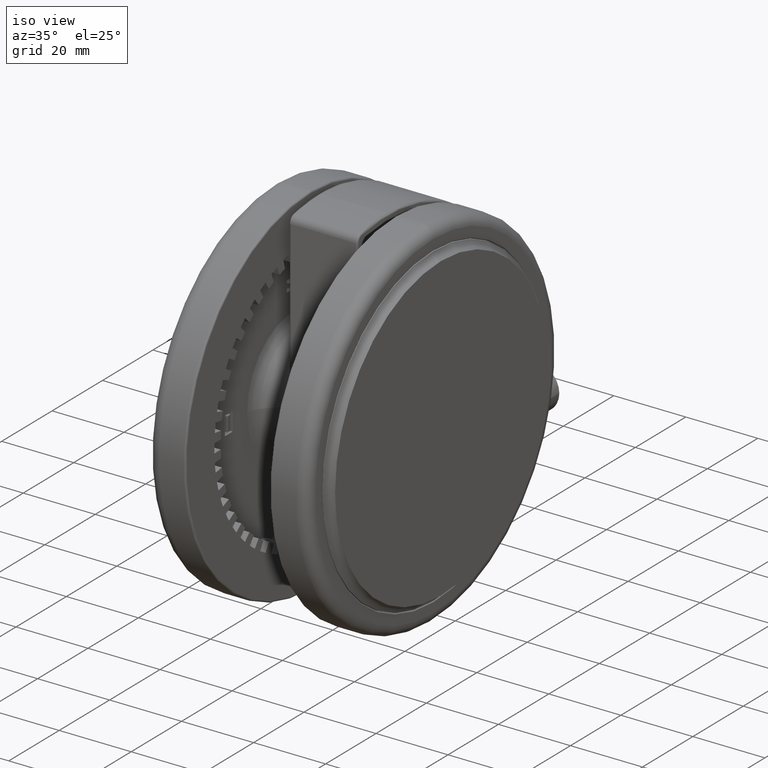
[diagram: clean part render]
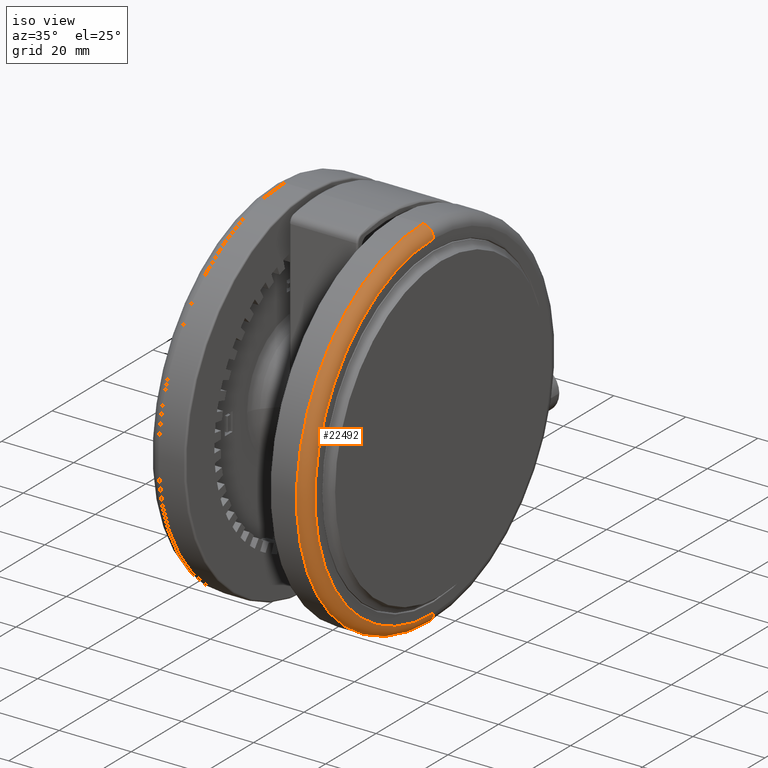
[diagram: same view with one face highlighted and labeled with its STEP entity id]
A machine part, iso view. The second image highlights one B-rep face of the part: STEP entity #22492.
In plain terms, the highlighted toroidal blend (fillet) surface has major radius 47 mm and minor (blend) radius 3 mm.
Its self-contained STEP definition (entity closure, byte-faithful):
#633 = CIRCLE ( 'NONE', #12936, 3.000000000000000900 ) ;
#888 = DIRECTION ( 'NONE',  ( 0.0000000000000000000, 0.0000000000000000000, -1.000000000000000000 ) ) ;
#1033 = CIRCLE ( 'NONE', #8955, 50.00000000000000000 ) ;
#1301 = VERTEX_POINT ( 'NONE', #2856 ) ;
#2656 = ORIENTED_EDGE ( 'NONE', *, *, #3468, .F. ) ;
#2794 = VERTEX_POINT ( 'NONE', #25921 ) ;
#2856 = CARTESIAN_POINT ( 'NONE',  ( 47.00000000000001400, 4.204813499887857100E-015, -2.099999999999990800 ) ) ;
#3468 = EDGE_CURVE ( 'NONE', #6915, #1301, #22864, .T. ) ;
#3663 = CARTESIAN_POINT ( 'NONE',  ( 1.387778780781445700E-014, -1.734723475976807100E-015, -5.099999999999880600 ) ) ;
#3999 = DIRECTION ( 'NONE',  ( -0.0000000000000000000, -1.000000000000000000, -0.0000000000000000000 ) ) ;
#5809 = TOROIDAL_SURFACE ( 'NONE', #23899, 47.00000000000000000, 3.000000000000000000 ) ;
#6161 = DIRECTION ( 'NONE',  ( 0.0000000000000000000, 0.0000000000000000000, -1.000000000000000000 ) ) ;
#6915 = VERTEX_POINT ( 'NONE', #27704 ) ;
#8276 = EDGE_LOOP ( 'NONE', ( #8304, #2656, #11390, #31594 ) ) ;
#8304 = ORIENTED_EDGE ( 'NONE', *, *, #19113, .F. ) ;
#8955 = AXIS2_PLACEMENT_3D ( 'NONE', #15811, #888, #18371 ) ;
#9687 = DIRECTION ( 'NONE',  ( -1.224646799147353200E-016, 1.000000000000000000, 0.0000000000000000000 ) ) ;
#11390 = ORIENTED_EDGE ( 'NONE', *, *, #13046, .T. ) ;
#11719 = AXIS2_PLACEMENT_3D ( 'NONE', #29473, #14459, #31947 ) ;
#12936 = AXIS2_PLACEMENT_3D ( 'NONE', #18967, #3999, #21506 ) ;
#13046 = EDGE_CURVE ( 'NONE', #6915, #2794, #633, .T. ) ;
#14459 = DIRECTION ( 'NONE',  ( -0.0000000000000000000, -0.0000000000000000000, 1.000000000000000000 ) ) ;
#15811 = CARTESIAN_POINT ( 'NONE',  ( 1.387778780781445700E-014, -1.734723475976807100E-015, -5.099999999999880600 ) ) ;
#16214 = VERTEX_POINT ( 'NONE', #31737 ) ;
#17506 = AXIS2_PLACEMENT_3D ( 'NONE', #24689, #9687, #27205 ) ;
#18371 = DIRECTION ( 'NONE',  ( -1.000000000000000000, 0.0000000000000000000, 0.0000000000000000000 ) ) ;
#18967 = CARTESIAN_POINT ( 'NONE',  ( -46.99999999999998600, -1.734723475976807100E-015, -5.099999999999880600 ) ) ;
#19113 = EDGE_CURVE ( 'NONE', #1301, #16214, #20131, .T. ) ;
#20131 = CIRCLE ( 'NONE', #17506, 3.000000000000002700 ) ;
#21506 = DIRECTION ( 'NONE',  ( 0.0000000000000000000, 0.0000000000000000000, -1.000000000000000000 ) ) ;
#22492 = ADVANCED_FACE ( 'NONE', ( #25817 ), #5809, .T. ) ;
#22864 = CIRCLE ( 'NONE', #11719, 47.00000000000000000 ) ;
#23899 = AXIS2_PLACEMENT_3D ( 'NONE', #3663, #6161, #28689 ) ;
#24689 = CARTESIAN_POINT ( 'NONE',  ( 47.00000000000001400, 4.021116480015753500E-015, -5.099999999999880600 ) ) ;
#25817 = FACE_OUTER_BOUND ( 'NONE', #8276, .T. ) ;
#25921 = CARTESIAN_POINT ( 'NONE',  ( -49.99999999999998600, -1.734723475976807100E-015, -5.099999999999880600 ) ) ;
#27205 = DIRECTION ( 'NONE',  ( -1.000000000000000000, -1.224646799147352000E-016, 0.0000000000000000000 ) ) ;
#27704 = CARTESIAN_POINT ( 'NONE',  ( -46.99999999999998600, -1.734723475976807100E-015, -2.099999999999990800 ) ) ;
#28689 = DIRECTION ( 'NONE',  ( -1.000000000000000000, 0.0000000000000000000, 0.0000000000000000000 ) ) ;
#29473 = CARTESIAN_POINT ( 'NONE',  ( 1.387778780781445700E-014, -1.734723475976807100E-015, -2.099999999999990800 ) ) ;
#30073 = EDGE_CURVE ( 'NONE', #16214, #2794, #1033, .T. ) ;
#31594 = ORIENTED_EDGE ( 'NONE', *, *, #30073, .F. ) ;
#31737 = CARTESIAN_POINT ( 'NONE',  ( 50.00000000000001400, 4.388510519759959000E-015, -5.099999999999880600 ) ) ;
#31947 = DIRECTION ( 'NONE',  ( -1.000000000000000000, 0.0000000000000000000, 0.0000000000000000000 ) ) ;